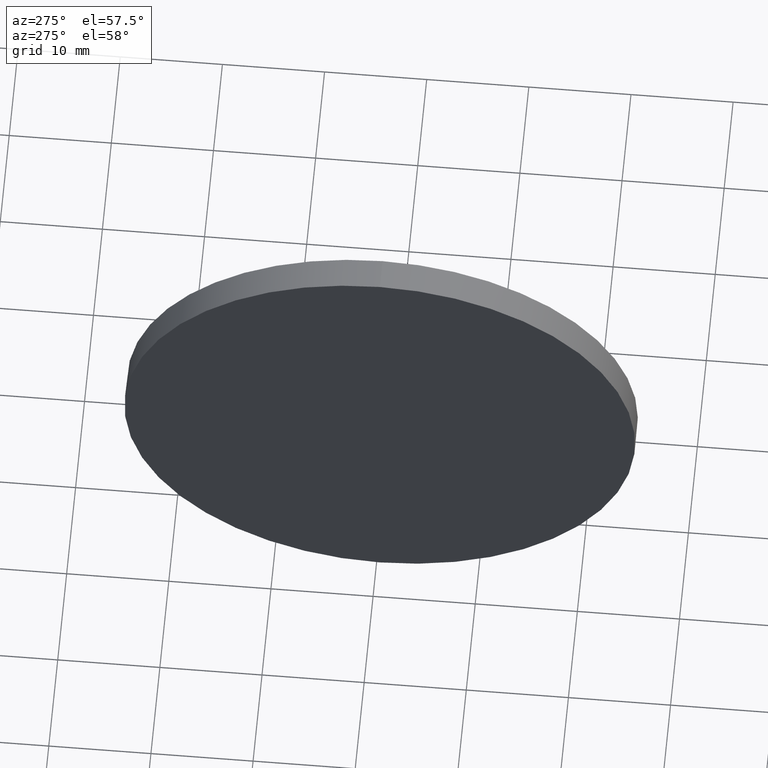
[diagram: clean part render]
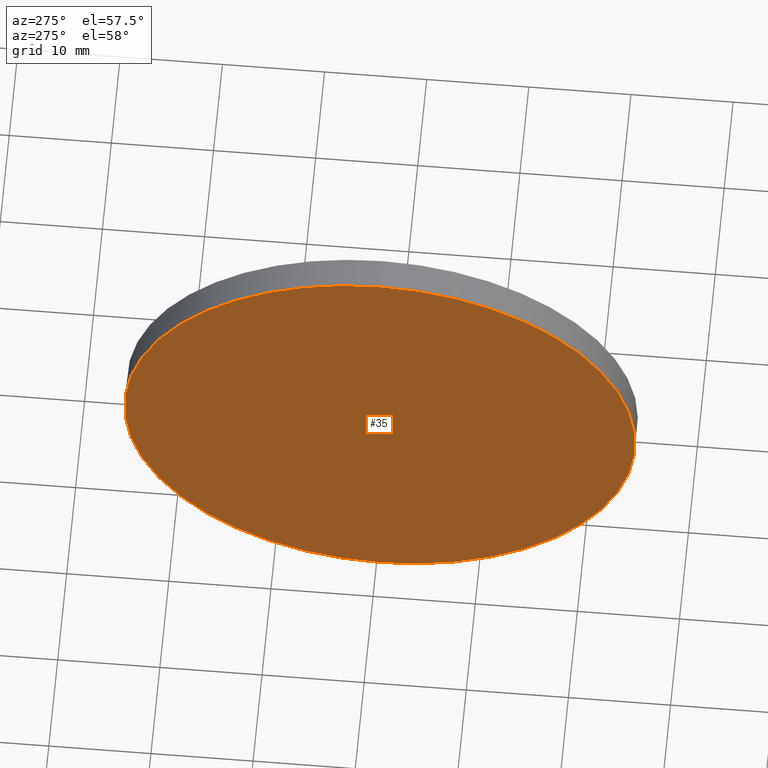
[diagram: same view with one face highlighted and labeled with its STEP entity id]
A machine part, auxiliary view. The second image highlights one B-rep face of the part: STEP entity #35.
In plain terms, the highlighted planar face has unit normal (1, 0, 0).
Its self-contained STEP definition (entity closure, byte-faithful):
#2 = VERTEX_POINT ( 'NONE', #103 ) ;
#4 = DIRECTION ( 'NONE',  ( 1.000000000000000000, 0.0000000000000000000, 0.0000000000000000000 ) ) ;
#12 = EDGE_CURVE ( 'NONE', #139, #2, #169, .T. ) ;
#29 = DIRECTION ( 'NONE',  ( 0.0000000000000000000, 0.0000000000000000000, 1.000000000000000000 ) ) ;
#35 = ADVANCED_FACE ( 'NONE', ( #110 ), #57, .F. ) ;
#41 = AXIS2_PLACEMENT_3D ( 'NONE', #124, #152, #142 ) ;
#43 = CARTESIAN_POINT ( 'NONE',  ( 343.2844701294416200, 9.632589185674760300, 24.99999999999999600 ) ) ;
#51 = ORIENTED_EDGE ( 'NONE', *, *, #182, .T. ) ;
#57 = PLANE ( 'NONE',  #65 ) ;
#65 = AXIS2_PLACEMENT_3D ( 'NONE', #76, #4, #164 ) ;
#73 = AXIS2_PLACEMENT_3D ( 'NONE', #157, #115, #29 ) ;
#76 = CARTESIAN_POINT ( 'NONE',  ( 343.2844701294416200, 9.632589185674760300, 0.0000000000000000000 ) ) ;
#103 = CARTESIAN_POINT ( 'NONE',  ( 343.2844701294416200, 9.632589185674763900, -24.99999999999999600 ) ) ;
#109 = CIRCLE ( 'NONE', #73, 24.99999999999999600 ) ;
#110 = FACE_OUTER_BOUND ( 'NONE', #186, .T. ) ;
#115 = DIRECTION ( 'NONE',  ( -1.000000000000000000, -0.0000000000000000000, -0.0000000000000000000 ) ) ;
#120 = ORIENTED_EDGE ( 'NONE', *, *, #12, .T. ) ;
#124 = CARTESIAN_POINT ( 'NONE',  ( 343.2844701294416200, 9.632589185674760300, 0.0000000000000000000 ) ) ;
#139 = VERTEX_POINT ( 'NONE', #43 ) ;
#142 = DIRECTION ( 'NONE',  ( 0.0000000000000000000, 0.0000000000000000000, 1.000000000000000000 ) ) ;
#152 = DIRECTION ( 'NONE',  ( -1.000000000000000000, -0.0000000000000000000, -0.0000000000000000000 ) ) ;
#157 = CARTESIAN_POINT ( 'NONE',  ( 343.2844701294416200, 9.632589185674760300, 0.0000000000000000000 ) ) ;
#164 = DIRECTION ( 'NONE',  ( 0.0000000000000000000, 0.0000000000000000000, -1.000000000000000000 ) ) ;
#169 = CIRCLE ( 'NONE', #41, 24.99999999999999600 ) ;
#182 = EDGE_CURVE ( 'NONE', #2, #139, #109, .T. ) ;
#186 = EDGE_LOOP ( 'NONE', ( #120, #51 ) ) ;